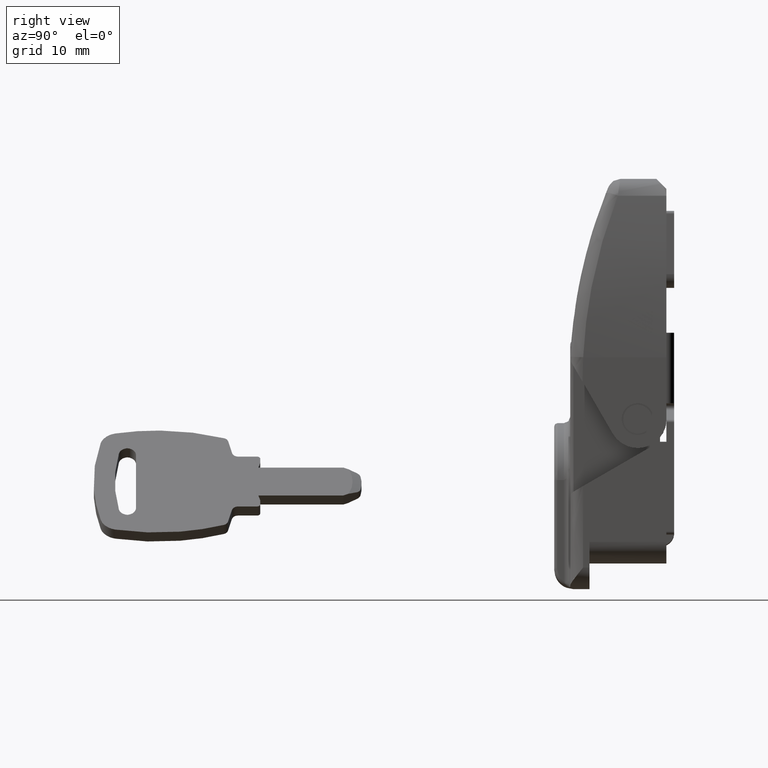
[diagram: clean part render]
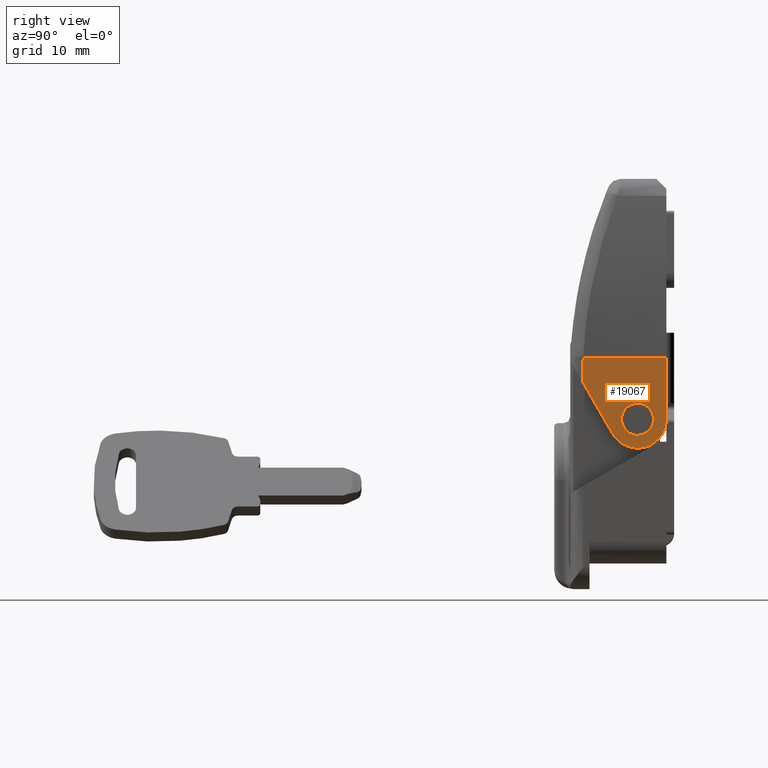
[diagram: same view with one face highlighted and labeled with its STEP entity id]
A machine part, right view. The second image highlights one B-rep face of the part: STEP entity #19067.
In plain terms, the highlighted face is a freeform B-spline surface patch.
Its self-contained STEP definition (entity closure, byte-faithful):
#16240=CARTESIAN_POINT('',(-8.183967815857944,-13.500000000000000,2.295085587072830));
#16241=VERTEX_POINT('',#16240);
#16247=CARTESIAN_POINT('',(-5.701444000000000,-13.500000000000000,-0.500000000000000));
#16248=VERTEX_POINT('',#16247);
#16249=CARTESIAN_POINT('',(-8.183967815857944,-13.500000000000007,2.295085587072829));
#16250=CARTESIAN_POINT('',(-8.201444000000000,-13.500000000000004,2.148060299565265));
#16251=CARTESIAN_POINT('',(-8.201444000000000,-13.500000000000000,2.0));
#16252=CARTESIAN_POINT('',(-8.201444000000000,-13.500000000000000,-0.500000000000000));
#16253=CARTESIAN_POINT('',(-5.701444000000000,-13.500000000000000,-0.500000000000000));
#16261=(BOUNDED_CURVE()B_SPLINE_CURVE(2,(#16249,#16250,#16251,#16252,#16253),.UNSPECIFIED.,.F.,.U.)B_SPLINE_CURVE_WITH_KNOTS((3,2,3),(0.229562473456971,0.250000000000000,0.500000000000000),.UNSPECIFIED.)CURVE()GEOMETRIC_REPRESENTATION_ITEM()RATIONAL_B_SPLINE_CURVE((0.956026754072883,0.976055948264907,1.0,0.707106781186548,1.0))REPRESENTATION_ITEM(''));
#16262=EDGE_CURVE('',#16241,#16248,#16261,.T.);
#16264=CARTESIAN_POINT('',(-3.206107003984375,-13.500000000000000,1.847378650524528));
#16265=VERTEX_POINT('',#16264);
#16266=CARTESIAN_POINT('',(-5.701444000000000,-13.500000000000000,-0.500000000000000));
#16267=CARTESIAN_POINT('',(-3.349678833941205,-13.500000000000000,-0.500000000000000));
#16268=CARTESIAN_POINT('',(-3.206107003984374,-13.499999999999998,1.847378650524528));
#16276=(BOUNDED_CURVE()B_SPLINE_CURVE(2,(#16266,#16267,#16268),.UNSPECIFIED.,.F.,.U.)B_SPLINE_CURVE_WITH_KNOTS((3,3),(0.500000000000000,0.739332962153691),.UNSPECIFIED.)CURVE()GEOMETRIC_REPRESENTATION_ITEM()RATIONAL_B_SPLINE_CURVE((1.0,0.719603993386589,0.976072041484007))REPRESENTATION_ITEM(''));
#16277=EDGE_CURVE('',#16248,#16265,#16276,.T.);
#16351=CARTESIAN_POINT('',(-5.701444000000000,-13.500000000000000,4.500000000000001));
#16352=VERTEX_POINT('',#16351);
#16353=CARTESIAN_POINT('',(-3.206107003984374,-13.500000000000000,1.847378650524528));
#16354=CARTESIAN_POINT('',(-3.201444000000000,-13.500000000000002,1.923618091113408));
#16355=CARTESIAN_POINT('',(-3.201444000000000,-13.500000000000000,2.0));
#16356=CARTESIAN_POINT('',(-3.201444000000000,-13.500000000000000,4.500000000000002));
#16357=CARTESIAN_POINT('',(-5.701444000000000,-13.500000000000000,4.500000000000001));
#16365=(BOUNDED_CURVE()B_SPLINE_CURVE(2,(#16353,#16354,#16355,#16356,#16357),.UNSPECIFIED.,.F.,.U.)B_SPLINE_CURVE_WITH_KNOTS((3,2,3),(0.739332962153690,0.750000000000000,1.0),.UNSPECIFIED.)CURVE()GEOMETRIC_REPRESENTATION_ITEM()RATIONAL_B_SPLINE_CURVE((0.976072041484005,0.987502787799958,1.0,0.707106781186548,1.0))REPRESENTATION_ITEM(''));
#16366=EDGE_CURVE('',#16265,#16352,#16365,.T.);
#16368=CARTESIAN_POINT('',(-5.701444000000000,-13.500000000000000,4.500000000000001));
#16369=CARTESIAN_POINT('',(-7.921880314102117,-13.500000000000000,4.500000000000002));
#16370=CARTESIAN_POINT('',(-8.183967815857944,-13.500000000000007,2.295085587072829));
#16378=(BOUNDED_CURVE()B_SPLINE_CURVE(2,(#16368,#16369,#16370),.UNSPECIFIED.,.F.,.U.)B_SPLINE_CURVE_WITH_KNOTS((3,3),(0.0,0.229562473456971),.UNSPECIFIED.)CURVE()GEOMETRIC_REPRESENTATION_ITEM()RATIONAL_B_SPLINE_CURVE((1.0,0.731050832921640,0.956026754072883))REPRESENTATION_ITEM(''));
#16379=EDGE_CURVE('',#16352,#16241,#16378,.T.);
#18005=CARTESIAN_POINT('',(-14.185438198836220,-13.500000000000000,11.664658000000120));
#18006=VERTEX_POINT('',#18005);
#18074=CARTESIAN_POINT('',(-14.284334928335980,-13.500000000000000,7.867497698240779));
#18075=VERTEX_POINT('',#18074);
#18103=CARTESIAN_POINT('',(-14.185438198836220,-13.500000000000000,11.664658000000120));
#18104=CARTESIAN_POINT('',(-14.281128849880528,-13.500000000000004,9.767282225684848));
#18105=CARTESIAN_POINT('',(-14.284334928336021,-13.500000000000000,7.867497698240801));
#18113=(BOUNDED_CURVE()B_SPLINE_CURVE(2,(#18103,#18104,#18105),.UNSPECIFIED.,.F.,.U.)CURVE()GEOMETRIC_REPRESENTATION_ITEM()QUASI_UNIFORM_CURVE()RATIONAL_B_SPLINE_CURVE((1.0,0.999703518530460,1.0))REPRESENTATION_ITEM(''));
#18114=EDGE_CURVE('',#18006,#18075,#18113,.T.);
#18402=CARTESIAN_POINT('',(-1.201443999999980,-13.500000000000000,2.0));
#18403=VERTEX_POINT('',#18402);
#18409=CARTESIAN_POINT('',(-9.638911999999889,-13.500000000000000,-0.178610999999876));
#18410=VERTEX_POINT('',#18409);
#18411=CARTESIAN_POINT('',(-9.638911999999889,-13.500000000000000,-0.178610999999876));
#18412=CARTESIAN_POINT('',(-7.951379973621990,-13.500000000000000,-3.228537436002783));
#18413=CARTESIAN_POINT('',(-4.576411986811041,-13.500000000000000,-2.357097998588027));
#18414=CARTESIAN_POINT('',(-1.201444000000091,-13.500000000000000,-1.485658561173269));
#18415=CARTESIAN_POINT('',(-1.201443999999980,-13.500000000000000,2.0));
#18423=(BOUNDED_CURVE()B_SPLINE_CURVE(2,(#18411,#18412,#18413,#18414,#18415),.UNSPECIFIED.,.F.,.U.)B_SPLINE_CURVE_WITH_KNOTS((3,2,3),(0.0,0.500000000000000,1.0),.UNSPECIFIED.)CURVE()GEOMETRIC_REPRESENTATION_ITEM()RATIONAL_B_SPLINE_CURVE((1.0,0.790571664696507,1.0,0.790571664696507,1.0))REPRESENTATION_ITEM(''));
#18424=EDGE_CURVE('',#18410,#18403,#18423,.T.);
#18439=CARTESIAN_POINT('',(-9.638911999999889,-13.500000000000000,-0.178610999999876));
#18440=CARTESIAN_POINT('',(-14.284334928335980,-13.500000000000000,7.867497698240779));
#18441=QUASI_UNIFORM_CURVE('',1,(#18439,#18440),.UNSPECIFIED.,.F.,.U.);
#18442=EDGE_CURVE('',#18410,#18075,#18441,.T.);
#18875=CARTESIAN_POINT('',(-1.201444000000000,-13.500000000000000,11.664658000000120));
#18876=VERTEX_POINT('',#18875);
#18877=CARTESIAN_POINT('',(-1.201443999999980,-13.500000000000000,2.0));
#18878=CARTESIAN_POINT('',(-1.201444000000000,-13.500000000000000,11.664658000000120));
#18879=QUASI_UNIFORM_CURVE('',1,(#18877,#18878),.UNSPECIFIED.,.F.,.U.);
#18880=EDGE_CURVE('',#18403,#18876,#18879,.T.);
#18954=CARTESIAN_POINT('',(-1.201444000000000,-13.500000000000000,11.664658000000120));
#18955=CARTESIAN_POINT('',(-14.185438198836220,-13.500000000000000,11.664658000000120));
#18956=QUASI_UNIFORM_CURVE('',1,(#18954,#18955),.UNSPECIFIED.,.F.,.U.);
#18957=EDGE_CURVE('',#18876,#18006,#18956,.T.);
#19049=CARTESIAN_POINT('',(-14.937825550474820,-13.500000000000000,12.372168783282900));
#19050=CARTESIAN_POINT('',(-14.937825550474820,-13.500000000000000,-3.207242124332469));
#19051=CARTESIAN_POINT('',(-0.547953260890981,-13.500000000000000,12.372168783282900));
#19052=CARTESIAN_POINT('',(-0.547953260890981,-13.500000000000000,-3.207242124332469));
#19053=B_SPLINE_SURFACE_WITH_KNOTS('',1,1,((#19049,#19051),(#19050,#19052)),.UNSPECIFIED.,.F.,.F.,.U.,(2,2),(2,2),(0.0,15.579410907615360),(0.0,14.389872289583840),.UNSPECIFIED.);
#19054=ORIENTED_EDGE('',*,*,#18957,.T.);
#19055=ORIENTED_EDGE('',*,*,#18114,.T.);
#19056=ORIENTED_EDGE('',*,*,#18442,.F.);
#19057=ORIENTED_EDGE('',*,*,#18424,.T.);
#19058=ORIENTED_EDGE('',*,*,#18880,.T.);
#19059=EDGE_LOOP('',(#19054,#19055,#19056,#19057,#19058));
#19060=FACE_OUTER_BOUND('',#19059,.T.);
#19061=ORIENTED_EDGE('',*,*,#16277,.F.);
#19062=ORIENTED_EDGE('',*,*,#16262,.F.);
#19063=ORIENTED_EDGE('',*,*,#16379,.F.);
#19064=ORIENTED_EDGE('',*,*,#16366,.F.);
#19065=EDGE_LOOP('',(#19061,#19062,#19063,#19064));
#19066=FACE_BOUND('',#19065,.T.);
#19067=ADVANCED_FACE('',(#19060,#19066),#19053,.T.);